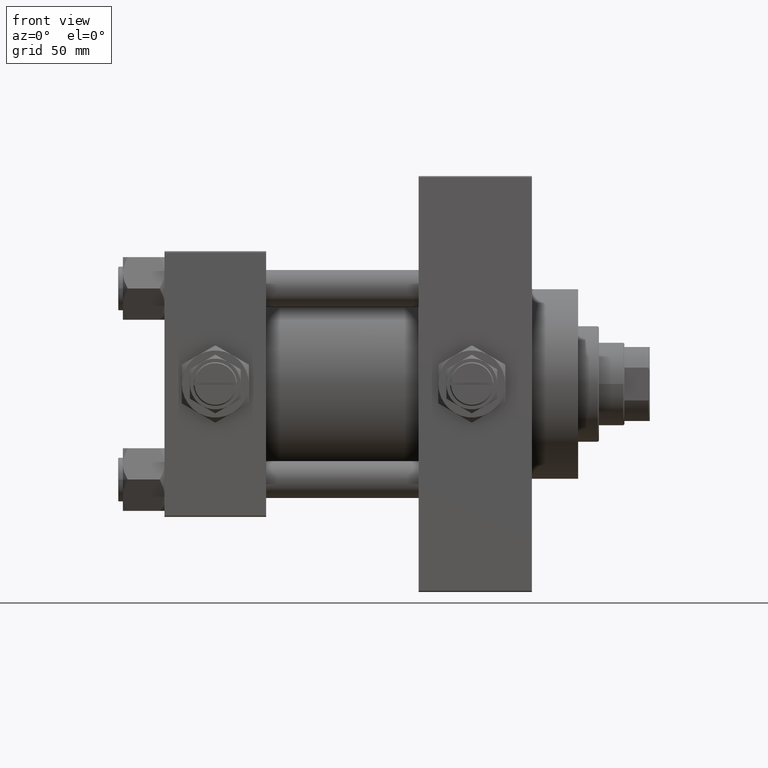
[diagram: clean part render]
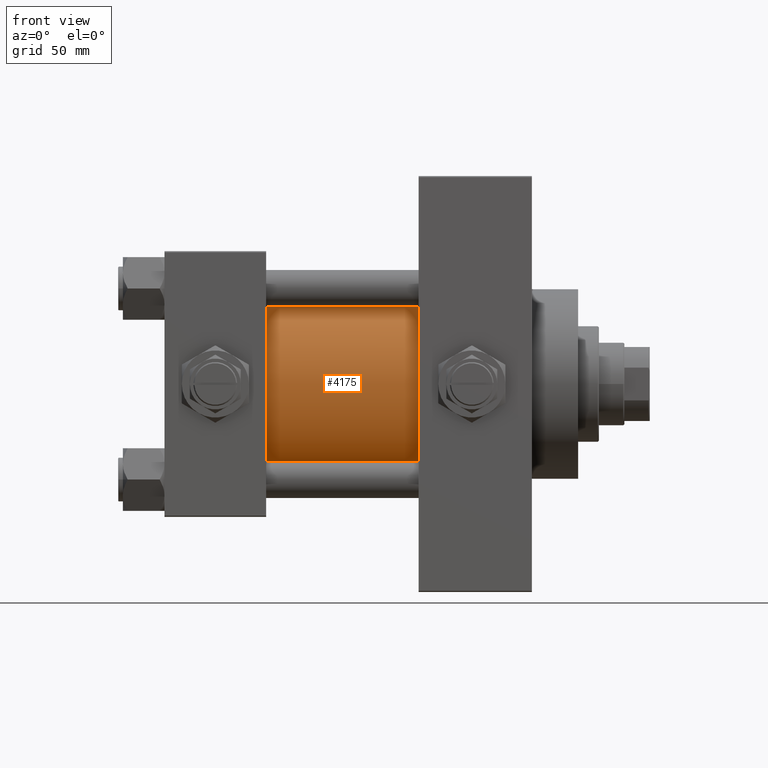
[diagram: same view with one face highlighted and labeled with its STEP entity id]
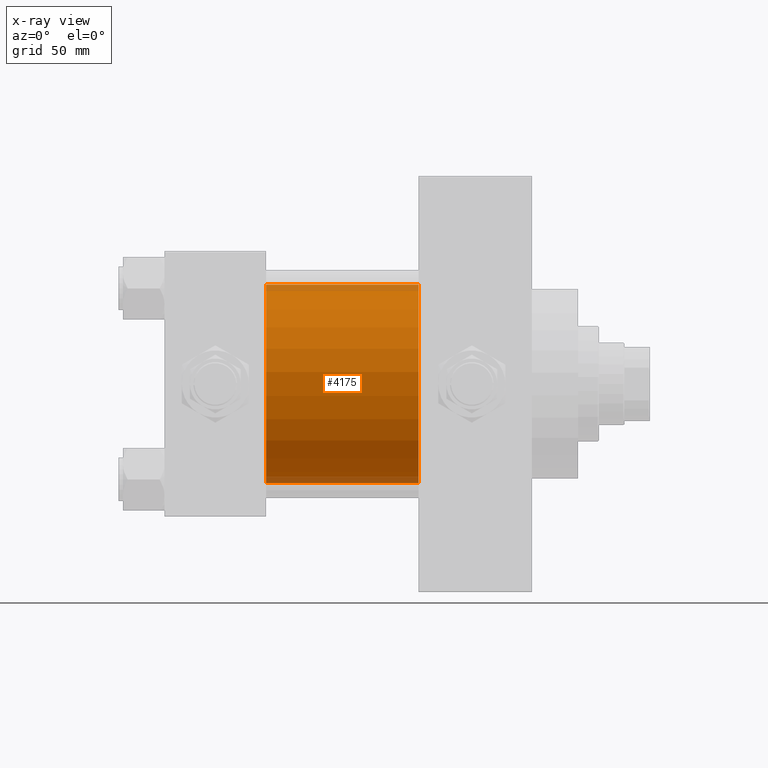
[diagram: x-ray of the same camera — body ghosted, the highlighted face saturated]
A machine part, front view. The second image highlights one B-rep face of the part: STEP entity #4175.
The next image is the same camera in x-ray: the body ghosted, the highlighted face saturated — about 7% of this face is hidden behind the body in this view.
In plain terms, the highlighted cylindrical surface (partial cylindrical patch) has radius 43 mm, axis along (-1, -0, -0).
Its self-contained STEP definition (entity closure, byte-faithful):
#1378 = DIRECTION ( 'NONE',  ( 0.000000000000000000, 0.000000000000000000, 1.000000000000000000 ) ) ;
#4175 = ADVANCED_FACE ( 'NONE', ( #16426 ), #19704, .T. ) ;
#4405 = DIRECTION ( 'NONE',  ( 1.000000000000000000, -0.000000000000000000, 0.000000000000000000 ) ) ;
#6703 = CARTESIAN_POINT ( 'NONE',  ( 44.00000000000000000, 2.663896022368408223E-15, -43.00000000000000000 ) ) ;
#6991 = ORIENTED_EDGE ( 'NONE', *, *, #41077, .T. ) ;
#7956 = CIRCLE ( 'NONE', #28069, 43.00000000000000000 ) ;
#9240 = VERTEX_POINT ( 'NONE', #39377 ) ;
#11127 = VERTEX_POINT ( 'NONE', #6703 ) ;
#11268 = CARTESIAN_POINT ( 'NONE',  ( 110.0000000000000000, -2.602085213965210642E-15, 43.00000000000000000 ) ) ;
#11578 = AXIS2_PLACEMENT_3D ( 'NONE', #34356, #15709, #18990 ) ;
#13141 = AXIS2_PLACEMENT_3D ( 'NONE', #19452, #46380, #31785 ) ;
#14181 = VECTOR ( 'NONE', #39253, 1000.000000000000000 ) ;
#14909 = EDGE_CURVE ( 'NONE', #9240, #11127, #16081, .T. ) ;
#15048 = VECTOR ( 'NONE', #40090, 1000.000000000000000 ) ;
#15709 = DIRECTION ( 'NONE',  ( 1.000000000000000000, 0.000000000000000000, 0.000000000000000000 ) ) ;
#15813 = ORIENTED_EDGE ( 'NONE', *, *, #18759, .T. ) ;
#16081 = LINE ( 'NONE', #42532, #14181 ) ;
#16426 = FACE_OUTER_BOUND ( 'NONE', #17794, .T. ) ;
#17794 = EDGE_LOOP ( 'NONE', ( #20929, #45638, #6991, #15813 ) ) ;
#18759 = EDGE_CURVE ( 'NONE', #36769, #11127, #7956, .T. ) ;
#18990 = DIRECTION ( 'NONE',  ( 0.000000000000000000, 0.000000000000000000, -1.000000000000000000 ) ) ;
#19452 = CARTESIAN_POINT ( 'NONE',  ( 110.0000000000000000, -2.602085213965210642E-15, 0.000000000000000000 ) ) ;
#19704 = CYLINDRICAL_SURFACE ( 'NONE', #13141, 43.00000000000000000 ) ;
#20929 = ORIENTED_EDGE ( 'NONE', *, *, #14909, .F. ) ;
#28069 = AXIS2_PLACEMENT_3D ( 'NONE', #47176, #4405, #1378 ) ;
#28444 = CARTESIAN_POINT ( 'NONE',  ( 44.00000000000000000, -2.602085213965210642E-15, 43.00000000000000000 ) ) ;
#28728 = VERTEX_POINT ( 'NONE', #31431 ) ;
#31431 = CARTESIAN_POINT ( 'NONE',  ( 110.0000000000000000, -2.602085213965210642E-15, 43.00000000000000000 ) ) ;
#31785 = DIRECTION ( 'NONE',  ( 0.000000000000000000, 0.000000000000000000, 1.000000000000000000 ) ) ;
#33588 = EDGE_CURVE ( 'NONE', #28728, #9240, #46925, .T. ) ;
#34356 = CARTESIAN_POINT ( 'NONE',  ( 110.0000000000000000, -2.602085213965210642E-15, 0.000000000000000000 ) ) ;
#36769 = VERTEX_POINT ( 'NONE', #28444 ) ;
#39253 = DIRECTION ( 'NONE',  ( -1.000000000000000000, -0.000000000000000000, -0.000000000000000000 ) ) ;
#39377 = CARTESIAN_POINT ( 'NONE',  ( 110.0000000000000000, 2.663896022368408223E-15, -43.00000000000000000 ) ) ;
#40090 = DIRECTION ( 'NONE',  ( -1.000000000000000000, -0.000000000000000000, -0.000000000000000000 ) ) ;
#41077 = EDGE_CURVE ( 'NONE', #28728, #36769, #45733, .T. ) ;
#42532 = CARTESIAN_POINT ( 'NONE',  ( 110.0000000000000000, 2.663896022368408223E-15, -43.00000000000000000 ) ) ;
#45638 = ORIENTED_EDGE ( 'NONE', *, *, #33588, .F. ) ;
#45733 = LINE ( 'NONE', #11268, #15048 ) ;
#46380 = DIRECTION ( 'NONE',  ( -1.000000000000000000, -0.000000000000000000, -0.000000000000000000 ) ) ;
#46925 = CIRCLE ( 'NONE', #11578, 43.00000000000000000 ) ;
#47176 = CARTESIAN_POINT ( 'NONE',  ( 44.00000000000000000, -2.602085213965210642E-15, 0.000000000000000000 ) ) ;